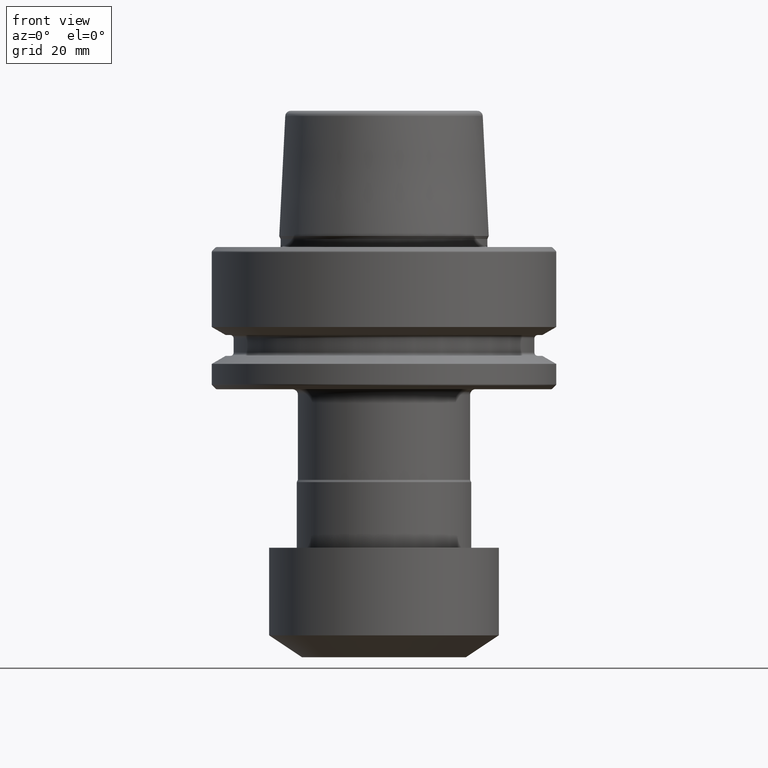
[diagram: clean part render]
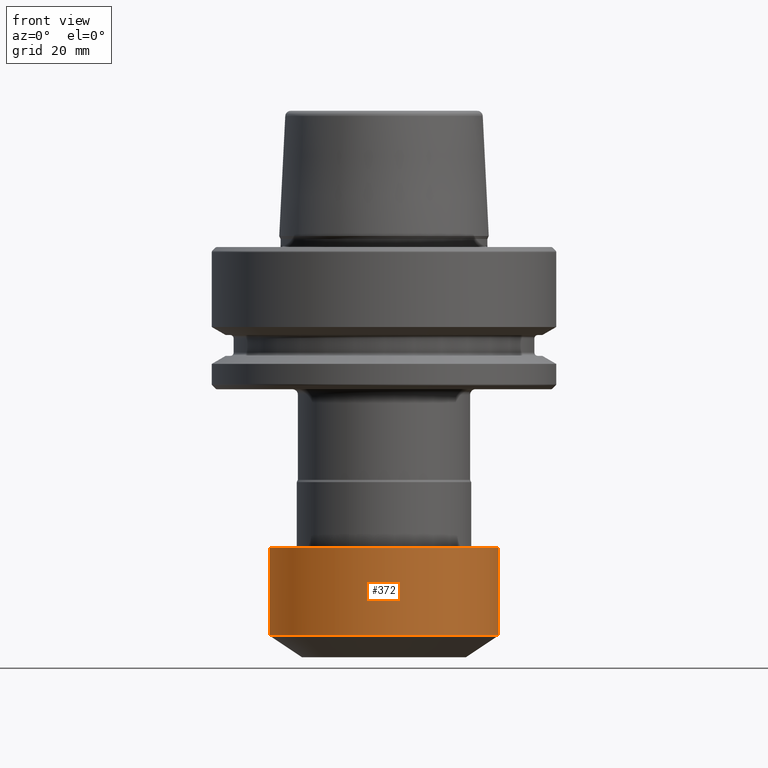
[diagram: same view with one face highlighted and labeled with its STEP entity id]
A machine part, front view. The second image highlights one B-rep face of the part: STEP entity #372.
In plain terms, the highlighted cylindrical surface (partial cylindrical patch) has radius 21 mm, axis along (-0, -0, 1).
Its self-contained STEP definition (entity closure, byte-faithful):
#23 = EDGE_CURVE ( 'NONE', #704, #926, #855, .T. ) ;
#41 = DIRECTION ( 'NONE',  ( 1.000000000000000000, 0.0000000000000000000, 0.0000000000000000000 ) ) ;
#64 = EDGE_CURVE ( 'NONE', #1507, #926, #1391, .T. ) ;
#85 = DIRECTION ( 'NONE',  ( -0.0000000000000000000, -0.0000000000000000000, 1.000000000000000000 ) ) ;
#164 = CYLINDRICAL_SURFACE ( 'NONE', #1153, 20.99999999999999600 ) ;
#314 = ORIENTED_EDGE ( 'NONE', *, *, #1105, .T. ) ;
#340 = LINE ( 'NONE', #962, #942 ) ;
#352 = DIRECTION ( 'NONE',  ( 1.000000000000000000, 0.0000000000000000000, 0.0000000000000000000 ) ) ;
#372 = ADVANCED_FACE ( 'NONE', ( #726 ), #164, .T. ) ;
#387 = DIRECTION ( 'NONE',  ( -0.0000000000000000000, -0.0000000000000000000, 1.000000000000000000 ) ) ;
#420 = CARTESIAN_POINT ( 'NONE',  ( 21.00000000000000000, 0.0000000000000000000, -76.00000000000000000 ) ) ;
#459 = EDGE_CURVE ( 'NONE', #881, #704, #340, .T. ) ;
#500 = CARTESIAN_POINT ( 'NONE',  ( 0.0000000000000000000, 0.0000000000000000000, -60.00000000000000000 ) ) ;
#520 = ORIENTED_EDGE ( 'NONE', *, *, #64, .T. ) ;
#690 = ORIENTED_EDGE ( 'NONE', *, *, #459, .F. ) ;
#704 = VERTEX_POINT ( 'NONE', #716 ) ;
#716 = CARTESIAN_POINT ( 'NONE',  ( -20.99999999999999600, 2.571758278209441300E-015, -60.00000000000000000 ) ) ;
#726 = FACE_OUTER_BOUND ( 'NONE', #901, .T. ) ;
#728 = ORIENTED_EDGE ( 'NONE', *, *, #23, .F. ) ;
#793 = CARTESIAN_POINT ( 'NONE',  ( 20.99999999999999600, 0.0000000000000000000, -60.00000000000000000 ) ) ;
#817 = AXIS2_PLACEMENT_3D ( 'NONE', #953, #834, #352 ) ;
#834 = DIRECTION ( 'NONE',  ( -0.0000000000000000000, -0.0000000000000000000, 1.000000000000000000 ) ) ;
#855 = CIRCLE ( 'NONE', #1163, 20.99999999999999600 ) ;
#877 = CIRCLE ( 'NONE', #817, 21.00000000000000000 ) ;
#881 = VERTEX_POINT ( 'NONE', #1365 ) ;
#901 = EDGE_LOOP ( 'NONE', ( #690, #314, #520, #728 ) ) ;
#926 = VERTEX_POINT ( 'NONE', #793 ) ;
#933 = DIRECTION ( 'NONE',  ( -0.0000000000000000000, -0.0000000000000000000, 1.000000000000000000 ) ) ;
#942 = VECTOR ( 'NONE', #984, 1000.000000000000000 ) ;
#953 = CARTESIAN_POINT ( 'NONE',  ( 0.0000000000000000000, 0.0000000000000000000, -76.00000000000000000 ) ) ;
#962 = CARTESIAN_POINT ( 'NONE',  ( -20.99999999999999600, 2.571758278209441300E-015, 47.99784906664302000 ) ) ;
#971 = DIRECTION ( 'NONE',  ( 1.000000000000000000, 0.0000000000000000000, 0.0000000000000000000 ) ) ;
#984 = DIRECTION ( 'NONE',  ( -0.0000000000000000000, -0.0000000000000000000, 1.000000000000000000 ) ) ;
#1083 = CARTESIAN_POINT ( 'NONE',  ( 20.99999999999999600, 0.0000000000000000000, 47.99784906664302000 ) ) ;
#1105 = EDGE_CURVE ( 'NONE', #881, #1507, #877, .T. ) ;
#1153 = AXIS2_PLACEMENT_3D ( 'NONE', #1280, #387, #971 ) ;
#1163 = AXIS2_PLACEMENT_3D ( 'NONE', #500, #85, #41 ) ;
#1280 = CARTESIAN_POINT ( 'NONE',  ( 0.0000000000000000000, 0.0000000000000000000, 47.99784906664302000 ) ) ;
#1365 = CARTESIAN_POINT ( 'NONE',  ( -21.00000000000000000, 2.571758278209441700E-015, -76.00000000000000000 ) ) ;
#1391 = LINE ( 'NONE', #1083, #1431 ) ;
#1431 = VECTOR ( 'NONE', #933, 1000.000000000000000 ) ;
#1507 = VERTEX_POINT ( 'NONE', #420 ) ;